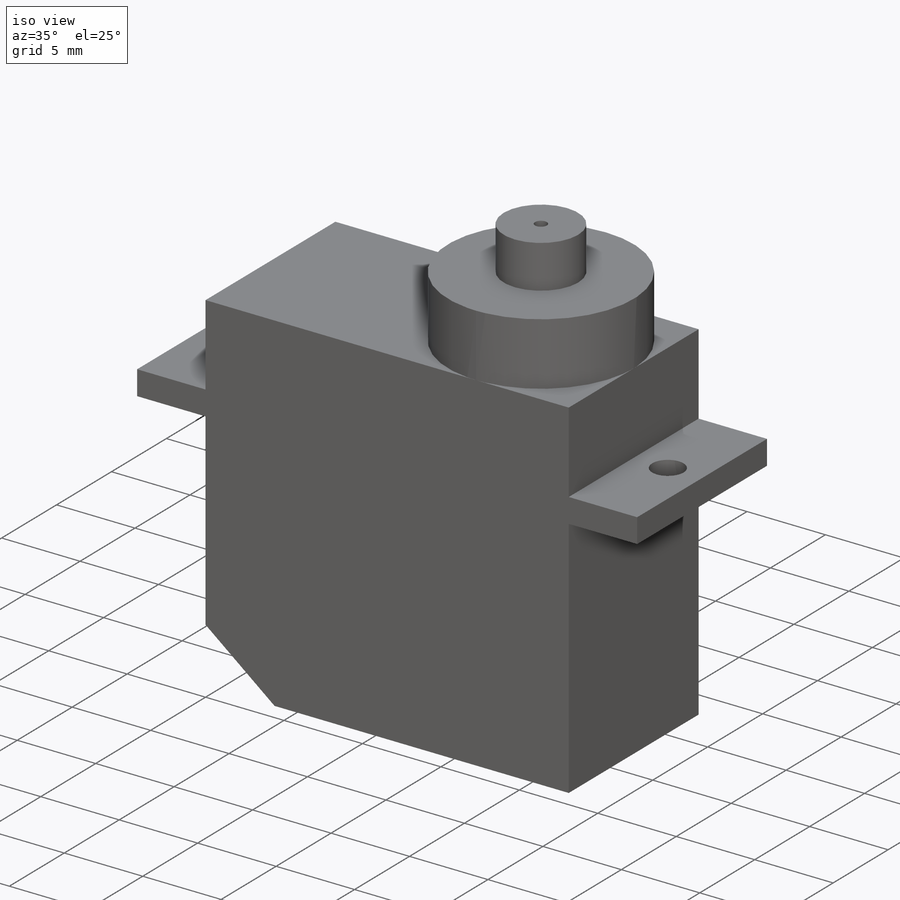
[diagram: iso view]
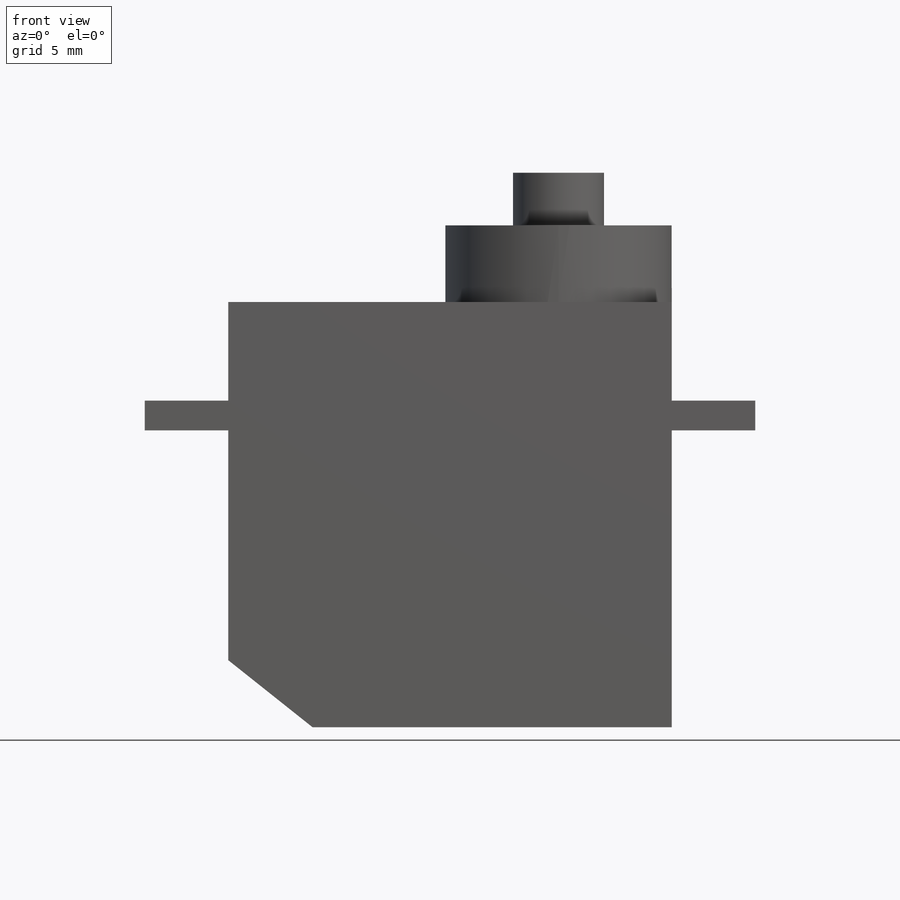
[diagram: front view]
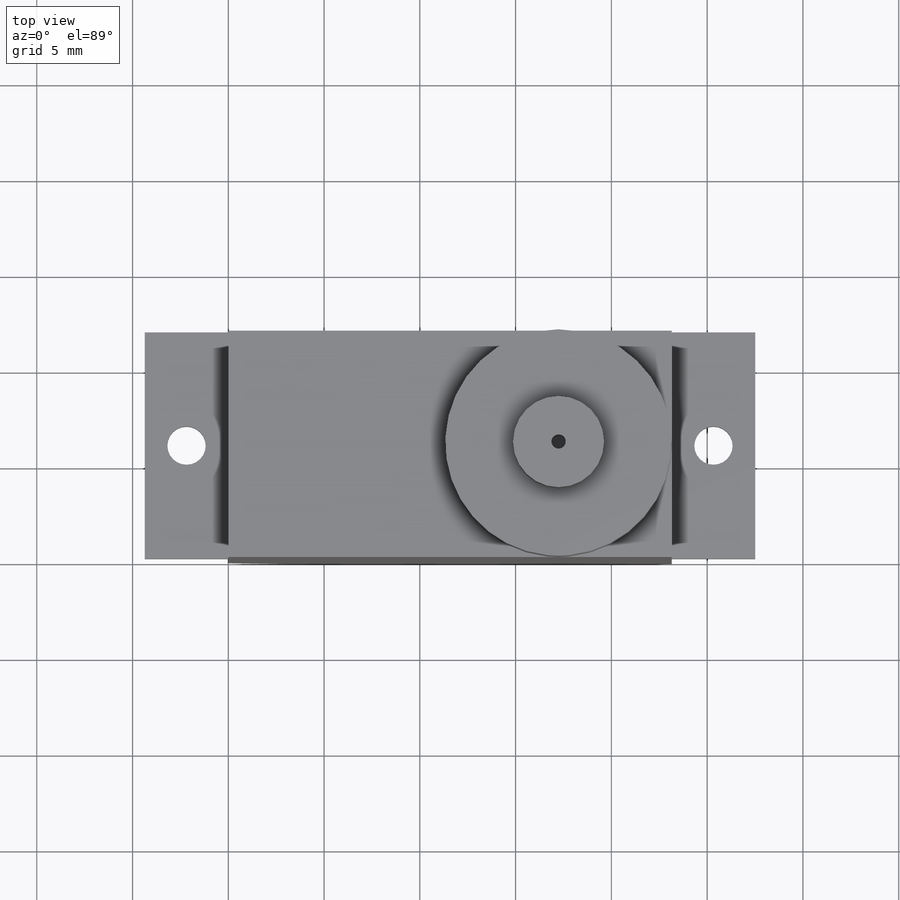
[diagram: top view]
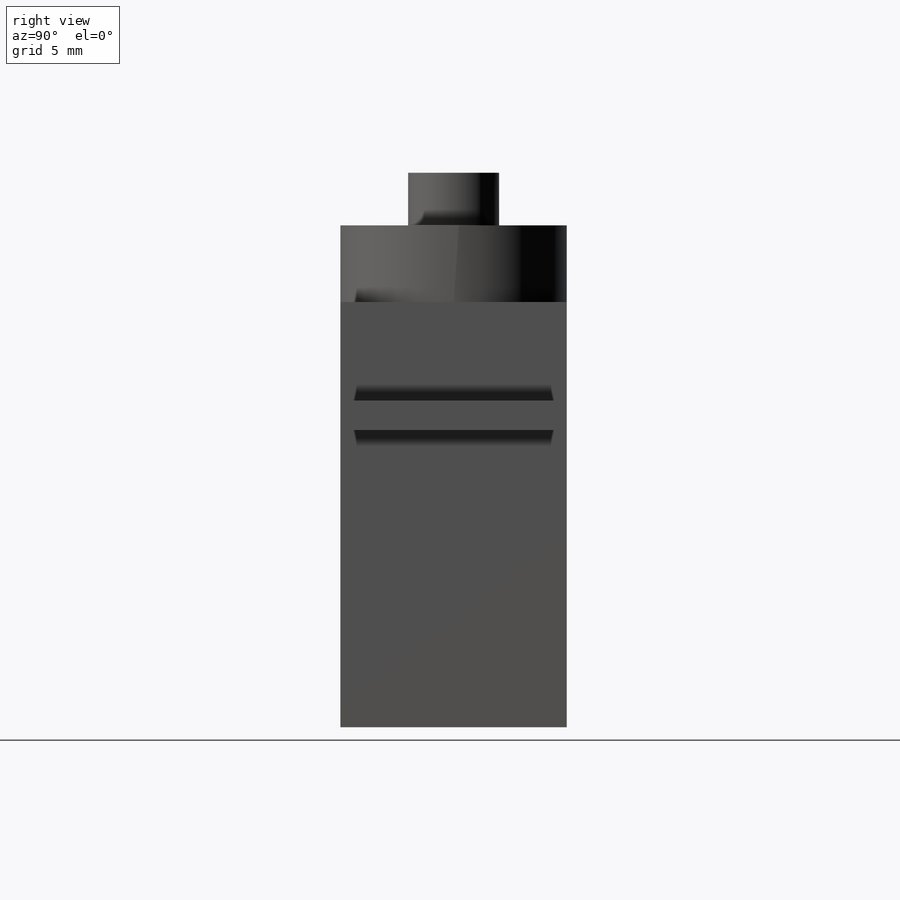
[diagram: right view]
SOLIDWORKS PART (.sldprt)
format: sldprt  version: not decoded by parser v0  size: 214,528 bytes
history: native  units: mm
features: sketch x7, extrude x4, cut_extrude x3, material x1, plane x1 (+11 scaffold rows collapsed)
feature tree (27):
  scaffold x11  (default folders/planes/origin — collapsed)
  material  "ABS"
  sketch  "Sketch1"  dims[D1=11.82mm D2=23.15mm]
  extrude  "Boss-Extrude1"  Depth=22.2mm
  plane  "Plane1"  Offset=15.5mm
  sketch  "Sketch2"  dims[D1=31.87mm D2=31.87mm]
  extrude  "Boss-Extrude2"  Depth=1.55mm
  sketch  "Sketch3"  dims[D1=2.0mm D2=27.51mm]
  cut_extrude  "Cut-Extrude1"  [1 undecoded]
  sketch  "Sketch4"  dims[D1=12.0mm D2=18.75mm]
  cut_extrude  "Cut-Extrude2"  [1 undecoded]
  sketch  "Sketch5"
  extrude  "Boss-Extrude3"  Depth=4mm
  sketch  "Sketch6"  dims[D1=4.75mm]
  extrude  "Boss-Extrude4"  Depth=2.75mm
  sketch  "Sketch7"  dims[D1=0.75mm]
  cut_extrude  "Cut-Extrude3"  Depth=2.75mm
decode coverage: 11 of 14 modeling features carry decoded parameters
note: 2 parameter values undecoded
note: suppression state not decoded; provenance and decode notes live in map.json
